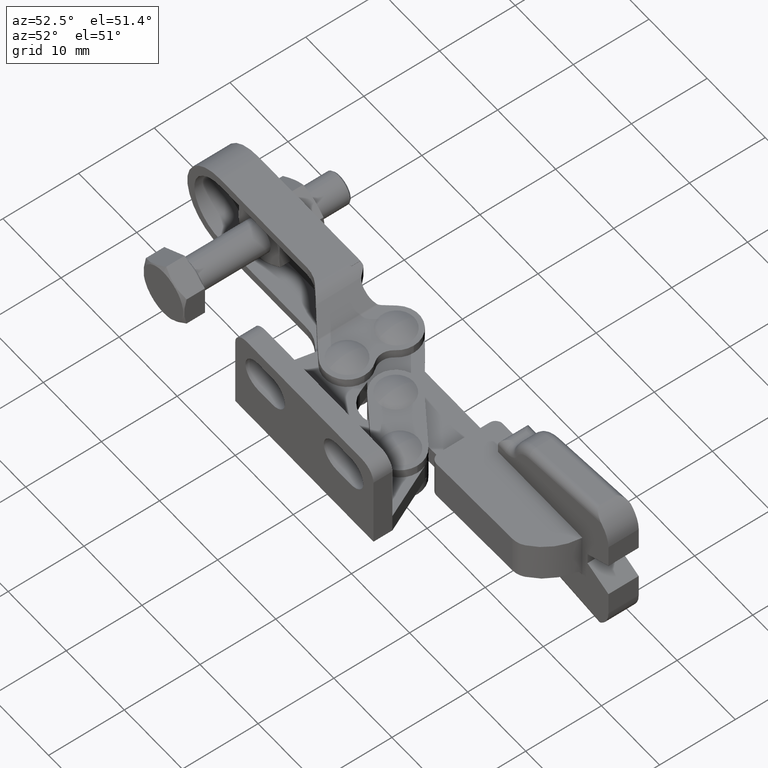
[diagram: clean part render]
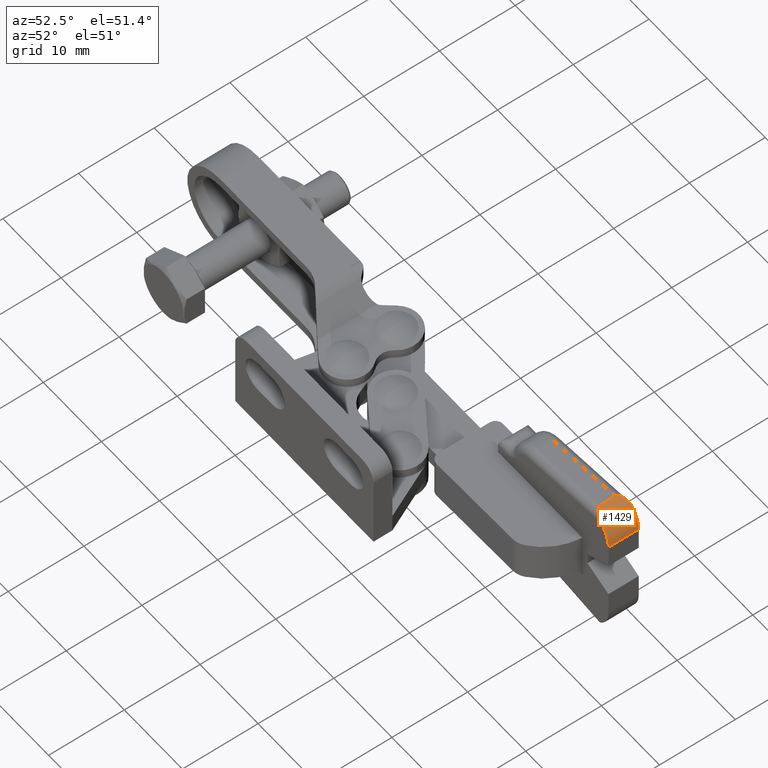
[diagram: same view with one face highlighted and labeled with its STEP entity id]
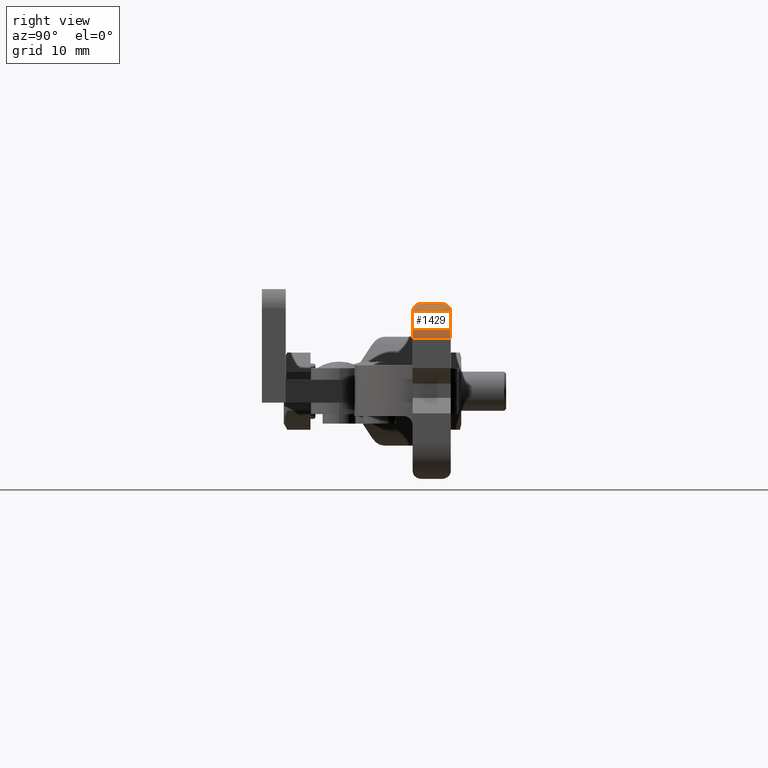
[diagram: same view with one face highlighted and labeled with its STEP entity id]
A machine part, auxiliary view. The second image highlights one B-rep face of the part: STEP entity #1429.
A second angle (right view) of the same face is appended — the face is thin or edge-on in the first view.
In plain terms, the highlighted cylindrical surface (edge-blend (fillet) strip) has radius 3.8 mm, axis along (-0, 1, -0).
Its self-contained STEP definition (entity closure, byte-faithful):
#33 = EDGE_CURVE ( 'NONE', #6067, #7979, #370, .T. ) ;
#72 = CARTESIAN_POINT ( 'NONE',  ( 42.40774849613087800, 15.80011349949630400, 8.361108662754620700 ) ) ;
#277 = EDGE_CURVE ( 'NONE', #8967, #7979, #3131, .T. ) ;
#336 = VERTEX_POINT ( 'NONE', #4346 ) ;
#370 = B_SPLINE_CURVE_WITH_KNOTS ( 'NONE', 3,
 ( #2912, #2871, #2193, #2916, #2962, #2976, #3007, #3031, #3039, #3048, #3065, #3066 ),
 .UNSPECIFIED., .F., .F.,
 ( 4, 2, 2, 2, 2, 4 ),
 ( 0.0000000000000000000, 0.0002667632085364310600, 0.0005335264170728621300, 0.001067052834145717300, 0.001600579251218572600, 0.002134105668291427700 ),
 .UNSPECIFIED. ) ;
#409 = DIRECTION ( 'NONE',  ( -5.478074518079572800E-015, 3.652049678719714900E-015, 1.000000000000000000 ) ) ;
#415 = AXIS2_PLACEMENT_3D ( 'NONE', #8643, #4572, #7417 ) ;
#485 = DIRECTION ( 'NONE',  ( 0.0000000000000000000, 3.652049678719714900E-015, 1.000000000000000000 ) ) ;
#1134 = EDGE_CURVE ( 'NONE', #8967, #5878, #6987, .T. ) ;
#1429 = ADVANCED_FACE ( 'NONE', ( #2310 ), #4398, .T. ) ;
#1885 = EDGE_CURVE ( 'NONE', #336, #5834, #5692, .T. ) ;
#1962 = ORIENTED_EDGE ( 'NONE', *, *, #3725, .F. ) ;
#2023 = DIRECTION ( 'NONE',  ( -2.952003684069184900E-006, 0.9999999999956429300, -3.462431052187104200E-015 ) ) ;
#2193 = CARTESIAN_POINT ( 'NONE',  ( 40.95009937806265300, 16.62339037498496100, 9.183743938786140100 ) ) ;
#2310 = FACE_OUTER_BOUND ( 'NONE', #5352, .T. ) ;
#2410 = EDGE_CURVE ( 'NONE', #5878, #336, #5467, .T. ) ;
#2871 = CARTESIAN_POINT ( 'NONE',  ( 40.91841742578593300, 16.70960360165069900, 9.192790192024205000 ) ) ;
#2912 = CARTESIAN_POINT ( 'NONE',  ( 40.91841715861336600, 16.80010910298906900, 9.192790192024205000 ) ) ;
#2916 = CARTESIAN_POINT ( 'NONE',  ( 41.04125634442316800, 16.47323268113743600, 9.155130567575364300 ) ) ;
#2962 = CARTESIAN_POINT ( 'NONE',  ( 41.10015349817079100, 16.40721172914912200, 9.135584793466797700 ) ) ;
#2976 = CARTESIAN_POINT ( 'NONE',  ( 41.28675851532349800, 16.23039921787065900, 9.067367542321243000 ) ) ;
#3007 = CARTESIAN_POINT ( 'NONE',  ( 41.42825436224400400, 16.13579631435387200, 9.007673278115774500 ) ) ;
#3031 = CARTESIAN_POINT ( 'NONE',  ( 41.70997749601286800, 15.97889524060748900, 8.865558087387498200 ) ) ;
#3039 = CARTESIAN_POINT ( 'NONE',  ( 41.85519902881083700, 15.91543085936854300, 8.780979910618135900 ) ) ;
#3048 = CARTESIAN_POINT ( 'NONE',  ( 42.13790016245369700, 15.82628514168299100, 8.588462092354024700 ) ) ;
#3065 = CARTESIAN_POINT ( 'NONE',  ( 42.27495531843422300, 15.80011310749035000, 8.481309928566780300 ) ) ;
#3066 = CARTESIAN_POINT ( 'NONE',  ( 42.40774849613087800, 15.80011349949630400, 8.361108662754620700 ) ) ;
#3104 = CARTESIAN_POINT ( 'NONE',  ( 42.27541032513495600, 19.80011310885096900, 8.480887378849429200 ) ) ;
#3121 = CARTESIAN_POINT ( 'NONE',  ( 42.40773668811614500, 19.80011349947887600, 8.361108662754610100 ) ) ;
#3131 = CIRCLE ( 'NONE', #8821, 3.799999734034159800 ) ;
#3149 = CARTESIAN_POINT ( 'NONE',  ( 42.13740379291183300, 19.77390991934828100, 8.588887340240228600 ) ) ;
#3172 = CARTESIAN_POINT ( 'NONE',  ( 41.85278699241027300, 19.68391201453688300, 8.782518790480414900 ) ) ;
#3181 = CARTESIAN_POINT ( 'NONE',  ( 41.71013684063331800, 19.62149838340912600, 8.865519054136772300 ) ) ;
#3197 = CARTESIAN_POINT ( 'NONE',  ( 41.42628585372137500, 19.46325753955202100, 9.008614270238865600 ) ) ;
#3204 = CARTESIAN_POINT ( 'NONE',  ( 41.28633089084110700, 19.36966976909447200, 9.067561878381697600 ) ) ;
#3208 = CARTESIAN_POINT ( 'NONE',  ( 41.09878410214301400, 19.19159374229933900, 9.136061441182645700 ) ) ;
#3221 = CARTESIAN_POINT ( 'NONE',  ( 41.04027092542548200, 19.12564992620392700, 9.155445401449737700 ) ) ;
#3238 = CARTESIAN_POINT ( 'NONE',  ( 40.94989724601357000, 18.97622890686603700, 9.183797126456994400 ) ) ;
#3246 = CARTESIAN_POINT ( 'NONE',  ( 40.91841098819269700, 18.89035740346670500, 9.192790192024199700 ) ) ;
#3259 = CARTESIAN_POINT ( 'NONE',  ( 40.91841125460599200, 18.80010910298035800, 9.192790192024197900 ) ) ;
#3725 = EDGE_CURVE ( 'NONE', #6067, #5834, #6318, .T. ) ;
#4346 = CARTESIAN_POINT ( 'NONE',  ( 42.40773668811614500, 19.80011349947887600, 8.361108662754610100 ) ) ;
#4395 = ORIENTED_EDGE ( 'NONE', *, *, #277, .F. ) ;
#4398 = CYLINDRICAL_SURFACE ( 'NONE', #7936, 3.799999734034159800 ) ;
#4572 = DIRECTION ( 'NONE',  ( 2.952003684069184900E-006, -0.9999999999956429300, 3.462431052187104200E-015 ) ) ;
#4619 = ORIENTED_EDGE ( 'NONE', *, *, #33, .T. ) ;
#5001 = DIRECTION ( 'NONE',  ( -2.952003684069184500E-006, 0.9999999999956428200, -3.462431052187103800E-015 ) ) ;
#5108 = CARTESIAN_POINT ( 'NONE',  ( 40.91843782263915600, 9.800109103019568800, 9.192790192024229900 ) ) ;
#5352 = EDGE_LOOP ( 'NONE', ( #1962, #4619, #4395, #7321, #7787, #7674 ) ) ;
#5467 = CIRCLE ( 'NONE', #415, 3.799999734034159800 ) ;
#5692 = B_SPLINE_CURVE_WITH_KNOTS ( 'NONE', 3,
 ( #3121, #3104, #3149, #3172, #3181, #3197, #3204, #3208, #3221, #3238, #3246, #3259 ),
 .UNSPECIFIED., .F., .F.,
 ( 4, 2, 2, 2, 2, 4 ),
 ( 0.0000000000000000000, 0.0005298445144574465000, 0.001059689028914893000, 0.001589533543372339700, 0.001854455800601069900, 0.002119378057829800300 ),
 .UNSPECIFIED. ) ;
#5834 = VERTEX_POINT ( 'NONE', #8672 ) ;
#5878 = VERTEX_POINT ( 'NONE', #9464 ) ;
#6067 = VERTEX_POINT ( 'NONE', #8111 ) ;
#6318 = LINE ( 'NONE', #5108, #9510 ) ;
#6852 = VECTOR ( 'NONE', #8022, 1000.000000000000100 ) ;
#6987 = LINE ( 'NONE', #8663, #6852 ) ;
#7265 = CARTESIAN_POINT ( 'NONE',  ( 43.65763555486801600, 15.80011718916747700, 5.543854091016932300 ) ) ;
#7321 = ORIENTED_EDGE ( 'NONE', *, *, #1134, .T. ) ;
#7417 = DIRECTION ( 'NONE',  ( 0.0000000000000000000, 3.652049678719714900E-015, 1.000000000000000000 ) ) ;
#7669 = CARTESIAN_POINT ( 'NONE',  ( 39.85765353287251900, 9.800105971580423500, 5.543854091016953600 ) ) ;
#7674 = ORIENTED_EDGE ( 'NONE', *, *, #1885, .T. ) ;
#7787 = ORIENTED_EDGE ( 'NONE', *, *, #2410, .T. ) ;
#7936 = AXIS2_PLACEMENT_3D ( 'NONE', #7669, #2023, #485 ) ;
#7979 = VERTEX_POINT ( 'NONE', #72 ) ;
#8022 = DIRECTION ( 'NONE',  ( -2.952003684069184500E-006, 0.9999999999956428200, -3.462431052187103800E-015 ) ) ;
#8111 = CARTESIAN_POINT ( 'NONE',  ( 40.91841715861336600, 16.80010910298906900, 9.192790192024205000 ) ) ;
#8643 = CARTESIAN_POINT ( 'NONE',  ( 39.85762401283567900, 19.80010597153685100, 5.543854091016919000 ) ) ;
#8663 = CARTESIAN_POINT ( 'NONE',  ( 43.65765326689012200, 9.800117189193636900, 5.543854091016953600 ) ) ;
#8672 = CARTESIAN_POINT ( 'NONE',  ( 40.91841125460599200, 18.80010910298035800, 9.192790192024197900 ) ) ;
#8821 = AXIS2_PLACEMENT_3D ( 'NONE', #9109, #9158, #409 ) ;
#8967 = VERTEX_POINT ( 'NONE', #7265 ) ;
#9109 = CARTESIAN_POINT ( 'NONE',  ( 39.85763582085041900, 15.80010597155427900, 5.543854091016932300 ) ) ;
#9158 = DIRECTION ( 'NONE',  ( 2.952003684069184900E-006, -0.9999999999956429300, 3.462431052187104200E-015 ) ) ;
#9464 = CARTESIAN_POINT ( 'NONE',  ( 43.65762374685328200, 19.80011718915006800, 5.543854091016919000 ) ) ;
#9510 = VECTOR ( 'NONE', #5001, 1000.000000000000100 ) ;